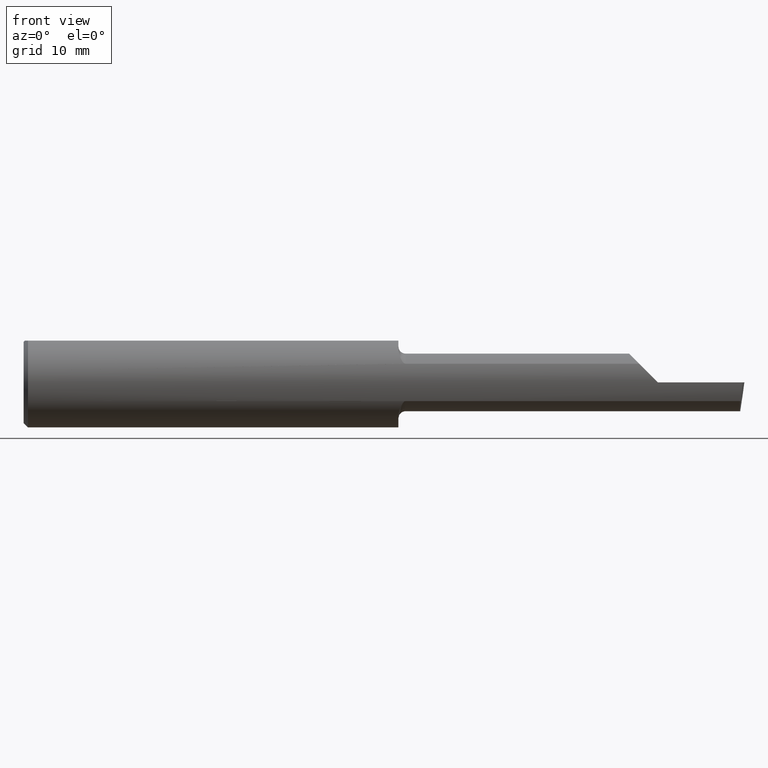
[diagram: clean part render]
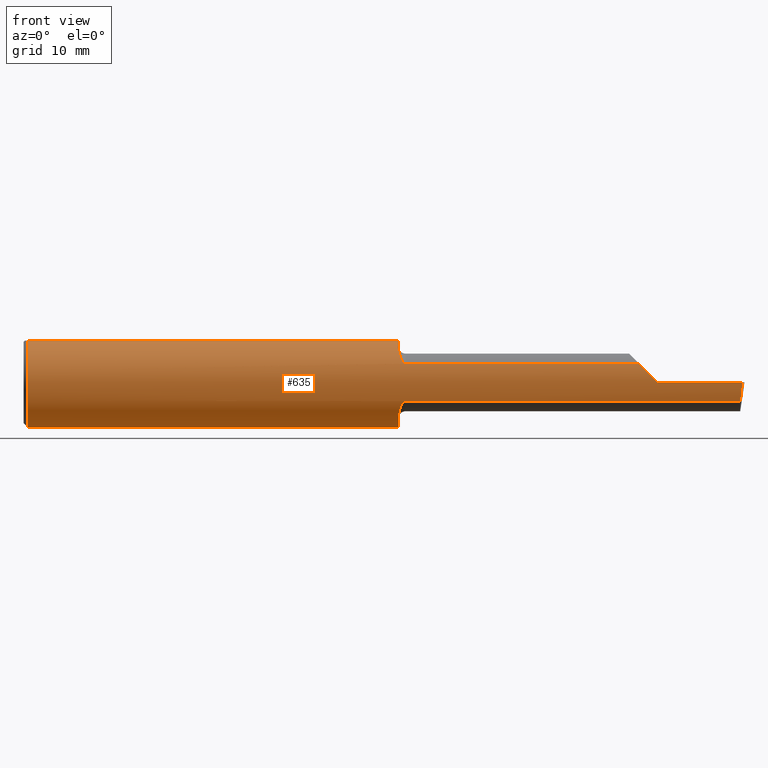
[diagram: same view with one face highlighted and labeled with its STEP entity id]
A machine part, front view. The second image highlights one B-rep face of the part: STEP entity #635.
In plain terms, the highlighted cylindrical surface (partial cylindrical patch) has radius 3.9649 mm, axis along (-1, -0, -0).
Its self-contained STEP definition (entity closure, byte-faithful):
#7 = VERTEX_POINT ( 'NONE', #640 ) ;
#15 = DIRECTION ( 'NONE',  ( 1.000000000000000000, 0.0000000000000000000, 0.0000000000000000000 ) ) ;
#19 = ORIENTED_EDGE ( 'NONE', *, *, #499, .T. ) ;
#23 = CARTESIAN_POINT ( 'NONE',  ( 1.300428134837081862, -0.1092850169809857497, -0.1116497630123361312 ) ) ;
#24 = DIRECTION ( 'NONE',  ( 1.000000000000000000, 0.0000000000000000000, 0.0000000000000000000 ) ) ;
#34 = CARTESIAN_POINT ( 'NONE',  ( 0.0000000000000000000, 0.05756040305626779902, 0.1450999999999999512 ) ) ;
#36 = CARTESIAN_POINT ( 'NONE',  ( 1.302040506864491576, -0.1180407066556270340, 0.1023492120876696720 ) ) ;
#48 = VERTEX_POINT ( 'NONE', #398 ) ;
#50 = B_SPLINE_CURVE_WITH_KNOTS ( 'NONE', 3,
 ( #637, #695, #371, #36, #430, #86, #485, #149, #537, #208, #586, #259, #643, #317 ),
 .UNSPECIFIED., .F., .F.,
 ( 4, 2, 2, 2, 2, 2, 4 ),
 ( 0.0001856976868807112932, 0.0006805519038525565442, 0.001175406120824401849, 0.001670260337796246938, 0.001917687446282169807, 0.002041401000525131567, 0.002165114554768093110 ),
 .UNSPECIFIED. ) ;
#53 = EDGE_CURVE ( 'NONE', #460, #689, #404, .T. ) ;
#54 = VERTEX_POINT ( 'NONE', #344 ) ;
#55 = ORIENTED_EDGE ( 'NONE', *, *, #664, .F. ) ;
#67 = DIRECTION ( 'NONE',  ( 1.000000000000000000, 0.0000000000000000000, 0.0000000000000000000 ) ) ;
#71 = CARTESIAN_POINT ( 'NONE',  ( 1.300000000000000266, -0.09941818181818193323, -0.1203463132961160309 ) ) ;
#76 = CARTESIAN_POINT ( 'NONE',  ( 2.155587570325277369, -0.1513252362624134539, 0.04441242967472197600 ) ) ;
#86 = CARTESIAN_POINT ( 'NONE',  ( 1.306590655429605397, -0.1296720675120676958, 0.08713405786343433879 ) ) ;
#96 = CARTESIAN_POINT ( 'NONE',  ( 2.486434241799654998, -0.1419939393939394501, -0.06484544066771573412 ) ) ;
#99 = DIRECTION ( 'NONE',  ( 0.0000000000000000000, 0.0000000000000000000, -1.000000000000000000 ) ) ;
#113 = CARTESIAN_POINT ( 'NONE',  ( 0.01499999999999999424, 0.0000000000000000000, -0.1560999999999999888 ) ) ;
#120 = DIRECTION ( 'NONE',  ( 0.0000000000000000000, 0.0000000000000000000, 1.000000000000000000 ) ) ;
#122 = ORIENTED_EDGE ( 'NONE', *, *, #278, .F. ) ;
#129 = EDGE_CURVE ( 'NONE', #164, #139, #150, .T. ) ;
#131 = CARTESIAN_POINT ( 'NONE',  ( 1.321725699135996468, -0.1417275062431945787, -0.06543227863119828458 ) ) ;
#134 = VECTOR ( 'NONE', #211, 39.37007874015748143 ) ;
#137 = CARTESIAN_POINT ( 'NONE',  ( 0.01499999999999999424, 0.05756040305626779902, 0.1450999999999999512 ) ) ;
#139 = VERTEX_POINT ( 'NONE', #542 ) ;
#146 = VECTOR ( 'NONE', #24, 39.37007874015748143 ) ;
#149 = CARTESIAN_POINT ( 'NONE',  ( 1.313017092274626041, -0.1374043365808045869, 0.07413505991998664557 ) ) ;
#150 =( BOUNDED_CURVE ( )  B_SPLINE_CURVE ( 3, ( #96, #438, #380, #701 ),
 .UNSPECIFIED., .F., .F. ) 
 B_SPLINE_CURVE_WITH_KNOTS ( ( 4, 4 ),
 ( 0.9323538202062678915, 1.360746882514633382 ),
 .UNSPECIFIED. ) 
 CURVE ( )  GEOMETRIC_REPRESENTATION_ITEM ( )  RATIONAL_B_SPLINE_CURVE ( ( 1.000000000000000000, 0.9847649979006014576, 0.9847649979006014576, 1.000000000000000000 ) ) 
 REPRESENTATION_ITEM ( '' )  );
#156 = CARTESIAN_POINT ( 'NONE',  ( 1.300000000000000266, -0.09941818181818193323, 0.1203463132961160309 ) ) ;
#157 = VERTEX_POINT ( 'NONE', #611 ) ;
#164 = VERTEX_POINT ( 'NONE', #507 ) ;
#168 = EDGE_CURVE ( 'NONE', #164, #48, #241, .T. ) ;
#183 = CARTESIAN_POINT ( 'NONE',  ( 1.777500000000000080, -0.1419939393939394501, 0.06484544066771573412 ) ) ;
#188 = CARTESIAN_POINT ( 'NONE',  ( 0.01499999999999999424, 0.0000000000000000000, 0.0000000000000000000 ) ) ;
#190 = CARTESIAN_POINT ( 'NONE',  ( 1.317803744158916102, -0.1404244429940953998, -0.06818941713933172888 ) ) ;
#198 = CARTESIAN_POINT ( 'NONE',  ( 0.0000000000000000000, 0.0000000000000000000, 0.0000000000000000000 ) ) ;
#207 = VERTEX_POINT ( 'NONE', #510 ) ;
#208 = CARTESIAN_POINT ( 'NONE',  ( 1.317808428589330338, -0.1404263024719112074, 0.06818548243543451348 ) ) ;
#211 = DIRECTION ( 'NONE',  ( -1.000000000000000000, -0.0000000000000000000, -0.0000000000000000000 ) ) ;
#212 = CYLINDRICAL_SURFACE ( 'NONE', #504, 0.1560999999999999888 ) ;
#227 = ORIENTED_EDGE ( 'NONE', *, *, #478, .T. ) ;
#234 = VERTEX_POINT ( 'NONE', #568 ) ;
#238 = EDGE_CURVE ( 'NONE', #425, #572, #255, .T. ) ;
#240 = DIRECTION ( 'NONE',  ( 0.0000000000000000000, 0.0000000000000000000, 1.000000000000000000 ) ) ;
#241 = LINE ( 'NONE', #289, #248 ) ;
#242 = CARTESIAN_POINT ( 'NONE',  ( 1.312996561902688208, -0.1373850824029525242, -0.07416982835688749887 ) ) ;
#246 = EDGE_CURVE ( 'NONE', #689, #207, #564, .T. ) ;
#248 = VECTOR ( 'NONE', #346, 39.37007874015748143 ) ;
#255 = CIRCLE ( 'NONE', #497, 0.1560999999999999888 ) ;
#258 = VECTOR ( 'NONE', #645, 39.37007874015748143 ) ;
#259 = CARTESIAN_POINT ( 'NONE',  ( 1.321727793412432739, -0.1417279534125322760, 0.06543130843947163322 ) ) ;
#278 = EDGE_CURVE ( 'NONE', #48, #234, #520, .T. ) ;
#284 = DIRECTION ( 'NONE',  ( -1.000000000000000000, -0.0000000000000000000, -0.0000000000000000000 ) ) ;
#289 = CARTESIAN_POINT ( 'NONE',  ( 1.777500000000000080, -0.1419939393939394501, -0.06484544066771573412 ) ) ;
#304 = CARTESIAN_POINT ( 'NONE',  ( 1.306590010709524963, -0.1296703571699488189, -0.08713627291423987897 ) ) ;
#317 = CARTESIAN_POINT ( 'NONE',  ( 1.325000000000000178, -0.1419939393939392280, 0.06484544066771594228 ) ) ;
#339 = ORIENTED_EDGE ( 'NONE', *, *, #416, .T. ) ;
#344 = CARTESIAN_POINT ( 'NONE',  ( 2.200000000000000178, -0.1560999999999999888, 9.797174393178826150E-17 ) ) ;
#346 = DIRECTION ( 'NONE',  ( -1.000000000000000000, -0.0000000000000000000, -0.0000000000000000000 ) ) ;
#352 = EDGE_CURVE ( 'NONE', #54, #7, #501, .T. ) ;
#355 = CARTESIAN_POINT ( 'NONE',  ( 1.302063943834881998, -0.1181307192064763451, -0.1022448908112567195 ) ) ;
#360 = CARTESIAN_POINT ( 'NONE',  ( 2.200000000000000178, -0.1560999999999999888, 9.797174393178826150E-17 ) ) ;
#371 = CARTESIAN_POINT ( 'NONE',  ( 1.300415155711666326, -0.1091772789608305289, 0.1117554983051642636 ) ) ;
#376 = FACE_OUTER_BOUND ( 'NONE', #396, .T. ) ;
#380 = CARTESIAN_POINT ( 'NONE',  ( 2.491270569402211699, -0.1560999999999999333, -0.02246288137099513443 ) ) ;
#392 = EDGE_CURVE ( 'NONE', #572, #157, #50, .T. ) ;
#396 = EDGE_LOOP ( 'NONE', ( #663, #649, #19, #512, #406, #709, #677, #339, #474, #597, #227, #55, #122 ) ) ;
#397 = AXIS2_PLACEMENT_3D ( 'NONE', #527, #595, #99 ) ;
#398 = CARTESIAN_POINT ( 'NONE',  ( 1.325000000000000178, -0.1419939393939393113, -0.06484544066771587290 ) ) ;
#404 = CIRCLE ( 'NONE', #654, 0.1560999999999999888 ) ;
#406 = ORIENTED_EDGE ( 'NONE', *, *, #705, .F. ) ;
#410 = CARTESIAN_POINT ( 'NONE',  ( 1.300000000000000266, 0.0000000000000000000, 0.0000000000000000000 ) ) ;
#413 = CARTESIAN_POINT ( 'NONE',  ( 1.323318217257565488, -0.1419939393939393668, -0.06484544066771588677 ) ) ;
#415 = CARTESIAN_POINT ( 'NONE',  ( 1.299999999999999600, -0.1044772303701485688, -0.1161670294028995798 ) ) ;
#416 = EDGE_CURVE ( 'NONE', #425, #207, #632, .T. ) ;
#419 = CARTESIAN_POINT ( 'NONE',  ( 2.177537118629004453, -0.1560999999999999333, 0.02246288137099522117 ) ) ;
#425 = VERTEX_POINT ( 'NONE', #647 ) ;
#430 = CARTESIAN_POINT ( 'NONE',  ( 1.303262464810605925, -0.1222000088982461569, 0.09733625715976106096 ) ) ;
#435 = DIRECTION ( 'NONE',  ( -1.000000000000000000, -0.0000000000000000000, -0.0000000000000000000 ) ) ;
#438 = CARTESIAN_POINT ( 'NONE',  ( 2.488699611492197761, -0.1513252362624135094, -0.04441242967472185110 ) ) ;
#460 = VERTEX_POINT ( 'NONE', #137 ) ;
#467 = DIRECTION ( 'NONE',  ( 0.0000000000000000000, 0.0000000000000000000, -1.000000000000000000 ) ) ;
#474 = ORIENTED_EDGE ( 'NONE', *, *, #246, .F. ) ;
#477 = CARTESIAN_POINT ( 'NONE',  ( 2.135154559332283597, -0.1419939393939393668, 0.06484544066771584514 ) ) ;
#478 = EDGE_CURVE ( 'NONE', #460, #617, #567, .T. ) ;
#485 = CARTESIAN_POINT ( 'NONE',  ( 1.308665904659251256, -0.1330436853938332109, 0.08186319721956643314 ) ) ;
#497 = AXIS2_PLACEMENT_3D ( 'NONE', #410, #67, #467 ) ;
#499 = EDGE_CURVE ( 'NONE', #139, #54, #620, .T. ) ;
#501 =( BOUNDED_CURVE ( )  B_SPLINE_CURVE ( 3, ( #360, #419, #76, #477 ),
 .UNSPECIFIED., .F., .F. ) 
 B_SPLINE_CURVE_WITH_KNOTS ( ( 4, 4 ),
 ( 4.712388980384689674, 5.140782042693055942 ),
 .UNSPECIFIED. ) 
 CURVE ( )  GEOMETRIC_REPRESENTATION_ITEM ( )  RATIONAL_B_SPLINE_CURVE ( ( 1.000000000000000000, 0.9847649979006014576, 0.9847649979006014576, 1.000000000000000000 ) ) 
 REPRESENTATION_ITEM ( '' )  );
#504 = AXIS2_PLACEMENT_3D ( 'NONE', #198, #435, #120 ) ;
#507 = CARTESIAN_POINT ( 'NONE',  ( 2.486434241799654998, -0.1419939393939394501, -0.06484544066771573412 ) ) ;
#510 = CARTESIAN_POINT ( 'NONE',  ( 0.01499999999999999424, -0.05756040305626774350, 0.1451000000000000068 ) ) ;
#512 = ORIENTED_EDGE ( 'NONE', *, *, #352, .T. ) ;
#517 = CARTESIAN_POINT ( 'NONE',  ( 1.318987086440956080, -0.1409404987250979790, -0.06711069163632704671 ) ) ;
#520 = B_SPLINE_CURVE_WITH_KNOTS ( 'NONE', 3,
 ( #676, #413, #131, #517, #190, #573, #242, #623, #304, #679, #355, #23, #415, #71 ),
 .UNSPECIFIED., .F., .F.,
 ( 4, 2, 2, 2, 2, 2, 4 ),
 ( 1.961289441070630364E-07, 0.0001258819157031990002, 0.0002515677024622909306, 0.0005029392759804757673, 0.001005682423016836117, 0.001508425570053196357, 0.002011168717089556815 ),
 .UNSPECIFIED. ) ;
#527 = CARTESIAN_POINT ( 'NONE',  ( 1.300000000000000266, 0.0000000000000000000, 0.0000000000000000000 ) ) ;
#537 = CARTESIAN_POINT ( 'NONE',  ( 1.314666516289594078, -0.1387430930441309884, 0.07158177069671500803 ) ) ;
#540 = CARTESIAN_POINT ( 'NONE',  ( 0.0000000000000000000, -0.05756040305626774350, 0.1451000000000000068 ) ) ;
#542 = CARTESIAN_POINT ( 'NONE',  ( 2.494029609882228549, -0.1561000000000000165, 6.889038570631779204E-17 ) ) ;
#552 = LINE ( 'NONE', #183, #667 ) ;
#564 = CIRCLE ( 'NONE', #641, 0.1560999999999999888 ) ;
#566 = CARTESIAN_POINT ( 'NONE',  ( 1.300000000000000266, 0.05756040305626777820, 0.1450999999999999512 ) ) ;
#567 = LINE ( 'NONE', #34, #146 ) ;
#568 = CARTESIAN_POINT ( 'NONE',  ( 1.300000000000000266, -0.09941818181818193323, -0.1203463132961160309 ) ) ;
#570 = DIRECTION ( 'NONE',  ( -1.000000000000000000, -0.0000000000000000000, -0.0000000000000000000 ) ) ;
#572 = VERTEX_POINT ( 'NONE', #156 ) ;
#573 = CARTESIAN_POINT ( 'NONE',  ( 1.314650979716348145, -0.1387334617349066379, -0.07160083655282355186 ) ) ;
#586 = CARTESIAN_POINT ( 'NONE',  ( 1.318988484139260509, -0.1409410548628159121, 0.06710952210203043056 ) ) ;
#595 = DIRECTION ( 'NONE',  ( 1.000000000000000000, 0.0000000000000000000, 0.0000000000000000000 ) ) ;
#597 = ORIENTED_EDGE ( 'NONE', *, *, #53, .F. ) ;
#605 = DIRECTION ( 'NONE',  ( 0.0000000000000000000, 0.0000000000000000000, 1.000000000000000000 ) ) ;
#611 = CARTESIAN_POINT ( 'NONE',  ( 1.325000000000000178, -0.1419939393939392280, 0.06484544066771594228 ) ) ;
#617 = VERTEX_POINT ( 'NONE', #566 ) ;
#620 = LINE ( 'NONE', #639, #258 ) ;
#623 = CARTESIAN_POINT ( 'NONE',  ( 1.308682090340783644, -0.1330572531291640825, -0.08183785561185250024 ) ) ;
#632 = LINE ( 'NONE', #540, #134 ) ;
#635 = ADVANCED_FACE ( 'NONE', ( #376 ), #212, .T. ) ;
#637 = CARTESIAN_POINT ( 'NONE',  ( 1.300000000000000266, -0.09941818181818193323, 0.1203463132961160309 ) ) ;
#639 = CARTESIAN_POINT ( 'NONE',  ( 3.121792066109142165E-32, -0.1560999999999999333, 3.155924005931204823E-16 ) ) ;
#640 = CARTESIAN_POINT ( 'NONE',  ( 2.135154559332283597, -0.1419939393939393668, 0.06484544066771584514 ) ) ;
#641 = AXIS2_PLACEMENT_3D ( 'NONE', #188, #570, #240 ) ;
#643 = CARTESIAN_POINT ( 'NONE',  ( 1.323328253254594911, -0.1419939393940947425, 0.06484544066737576995 ) ) ;
#645 = DIRECTION ( 'NONE',  ( -1.000000000000000000, -0.0000000000000000000, -0.0000000000000000000 ) ) ;
#647 = CARTESIAN_POINT ( 'NONE',  ( 1.300000000000000266, -0.05756040305626776432, 0.1451000000000000068 ) ) ;
#649 = ORIENTED_EDGE ( 'NONE', *, *, #129, .T. ) ;
#654 = AXIS2_PLACEMENT_3D ( 'NONE', #662, #284, #605 ) ;
#662 = CARTESIAN_POINT ( 'NONE',  ( 0.01499999999999999424, 0.0000000000000000000, 0.0000000000000000000 ) ) ;
#663 = ORIENTED_EDGE ( 'NONE', *, *, #168, .F. ) ;
#664 = EDGE_CURVE ( 'NONE', #234, #617, #696, .T. ) ;
#667 = VECTOR ( 'NONE', #15, 39.37007874015748143 ) ;
#676 = CARTESIAN_POINT ( 'NONE',  ( 1.325000000000000178, -0.1419939393939393113, -0.06484544066771587290 ) ) ;
#677 = ORIENTED_EDGE ( 'NONE', *, *, #238, .F. ) ;
#679 = CARTESIAN_POINT ( 'NONE',  ( 1.303264033160803193, -0.1222037927935208934, -0.09733121088759352779 ) ) ;
#689 = VERTEX_POINT ( 'NONE', #113 ) ;
#695 = CARTESIAN_POINT ( 'NONE',  ( 1.300000000000000933, -0.1044500923568690565, 0.1161894481365070286 ) ) ;
#696 = CIRCLE ( 'NONE', #397, 0.1560999999999999888 ) ;
#701 = CARTESIAN_POINT ( 'NONE',  ( 2.494029609882228549, -0.1561000000000000165, 6.889038570631779204E-17 ) ) ;
#705 = EDGE_CURVE ( 'NONE', #157, #7, #552, .T. ) ;
#709 = ORIENTED_EDGE ( 'NONE', *, *, #392, .F. ) ;